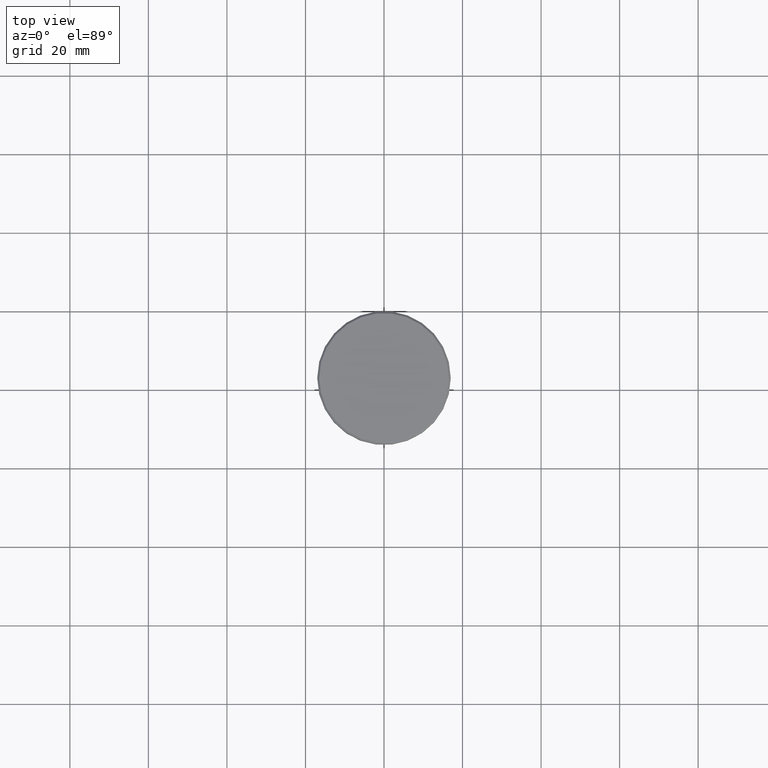
[diagram: clean part render]
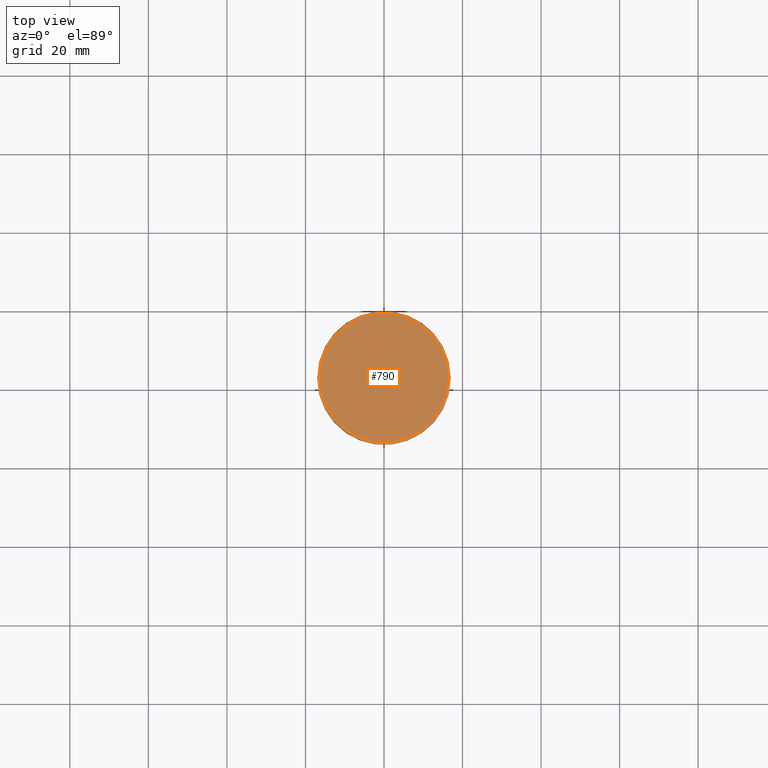
[diagram: same view with one face highlighted and labeled with its STEP entity id]
A machine part, top view. The second image highlights one B-rep face of the part: STEP entity #790.
In plain terms, the highlighted planar face has unit normal (0, -0, 1).
Its self-contained STEP definition (entity closure, byte-faithful):
#42 = CARTESIAN_POINT ( 'NONE',  ( 0.000000000000000000, 0.000000000000000000, 0.000000000000000000 ) ) ;
#127 = CIRCLE ( 'NONE', #277, 16.49999999999995737 ) ;
#185 = VERTEX_POINT ( 'NONE', #279 ) ;
#215 = CARTESIAN_POINT ( 'NONE',  ( 0.000000000000000000, 0.000000000000000000, 0.000000000000000000 ) ) ;
#258 = CARTESIAN_POINT ( 'NONE',  ( -16.49999999999995737, 0.000000000000000000, 0.000000000000000000 ) ) ;
#277 = AXIS2_PLACEMENT_3D ( 'NONE', #42, #756, #853 ) ;
#279 = CARTESIAN_POINT ( 'NONE',  ( 16.49999999999995737, 2.051283388571814520E-15, 0.000000000000000000 ) ) ;
#333 = AXIS2_PLACEMENT_3D ( 'NONE', #215, #579, #957 ) ;
#341 = CARTESIAN_POINT ( 'NONE',  ( 0.000000000000000000, 0.000000000000000000, 0.000000000000000000 ) ) ;
#388 = PLANE ( 'NONE',  #333 ) ;
#409 = ORIENTED_EDGE ( 'NONE', *, *, #851, .T. ) ;
#537 = DIRECTION ( 'NONE',  ( -0.000000000000000000, -0.000000000000000000, 1.000000000000000000 ) ) ;
#579 = DIRECTION ( 'NONE',  ( 0.000000000000000000, -0.000000000000000000, 1.000000000000000000 ) ) ;
#625 = DIRECTION ( 'NONE',  ( 1.000000000000000000, 0.000000000000000000, 0.000000000000000000 ) ) ;
#627 = EDGE_LOOP ( 'NONE', ( #1054, #409 ) ) ;
#716 = CIRCLE ( 'NONE', #1043, 16.49999999999995737 ) ;
#756 = DIRECTION ( 'NONE',  ( -0.000000000000000000, -0.000000000000000000, 1.000000000000000000 ) ) ;
#770 = FACE_OUTER_BOUND ( 'NONE', #627, .T. ) ;
#790 = ADVANCED_FACE ( 'NONE', ( #770 ), #388, .T. ) ;
#851 = EDGE_CURVE ( 'NONE', #185, #855, #716, .T. ) ;
#853 = DIRECTION ( 'NONE',  ( 1.000000000000000000, 0.000000000000000000, 0.000000000000000000 ) ) ;
#855 = VERTEX_POINT ( 'NONE', #258 ) ;
#957 = DIRECTION ( 'NONE',  ( 1.000000000000000000, 0.000000000000000000, 0.000000000000000000 ) ) ;
#1043 = AXIS2_PLACEMENT_3D ( 'NONE', #341, #537, #625 ) ;
#1054 = ORIENTED_EDGE ( 'NONE', *, *, #1155, .T. ) ;
#1155 = EDGE_CURVE ( 'NONE', #855, #185, #127, .T. ) ;